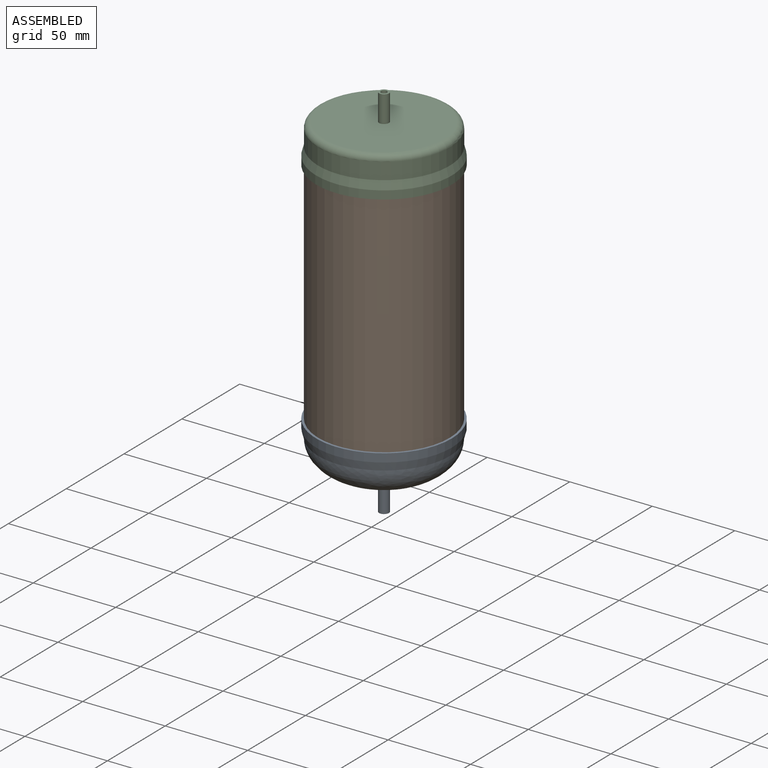
[diagram: assembled view]
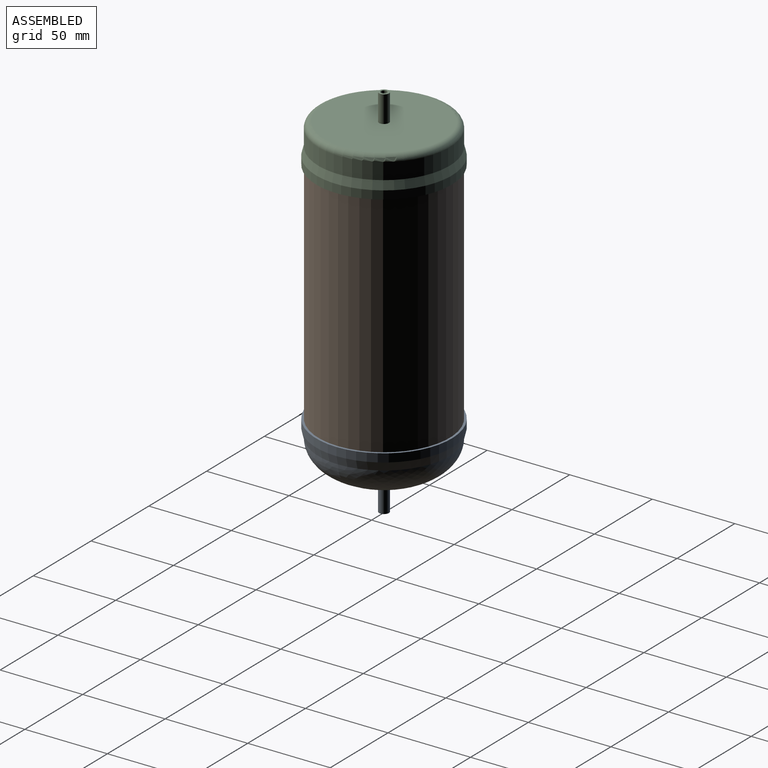
[diagram: assembled view, second angle]
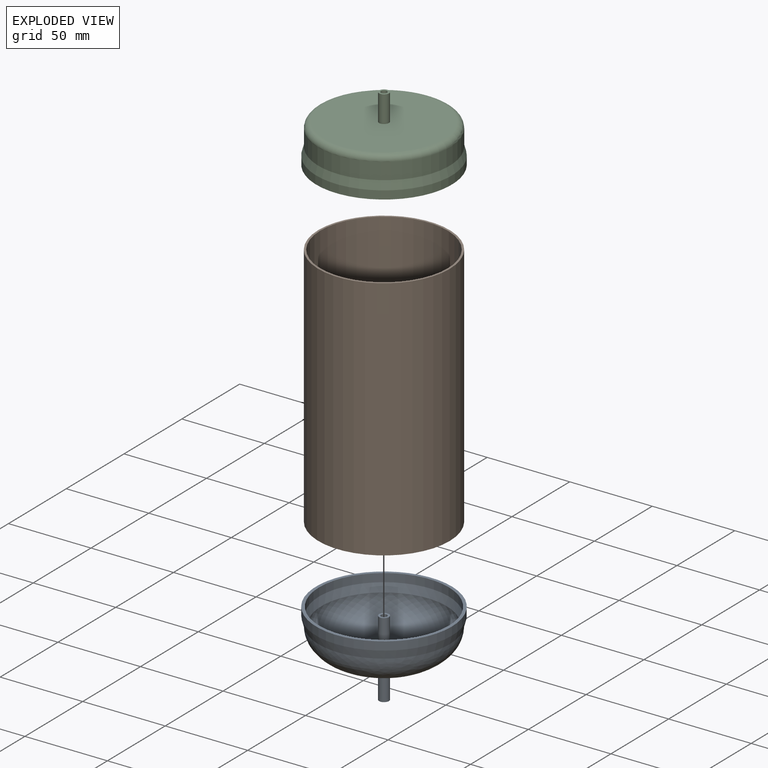
[diagram: exploded view]
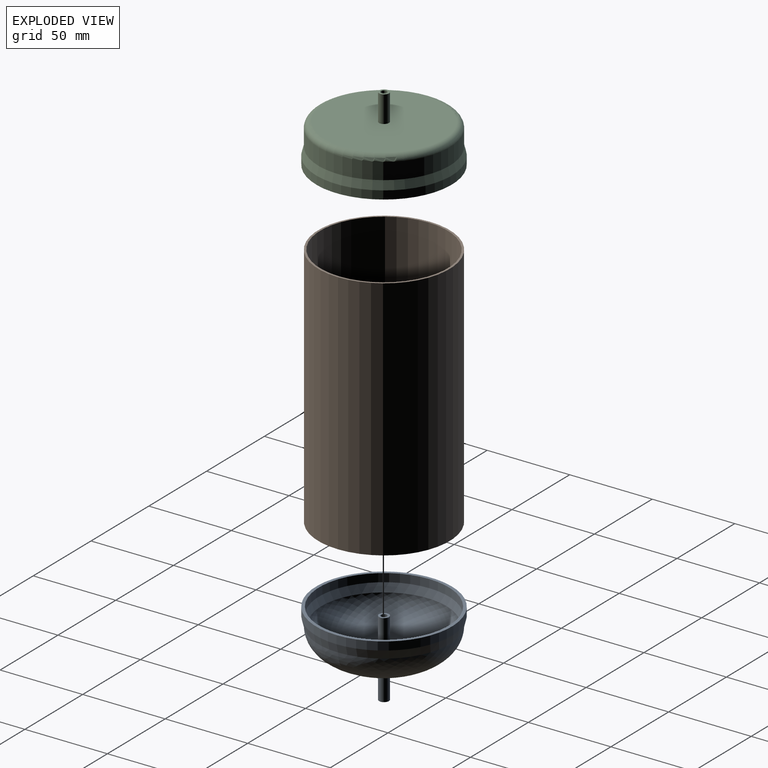
[diagram: exploded view, second angle]
ASSEMBLY  parts=3 mates=2
PART A: 15 faces, bbox 82.2x82.2x51 mm
  f0: cylinder r=39.3mm len=78.6mm, axis (0,0,1), area 1234.6mm2, adj f1,f6
  f1: plane 82.2x82.2mm, normal (0,0,1), area 454.7mm2, adj f0,f2
  f2: cylinder r=41.1mm len=82.2mm, axis (0,0,1), area 1291.2mm2, adj f1,f3
  f3: cone r=41.1mm half-angle=14.6deg, axis (0,0,1), area 1313mm2, adj f2,f4
  f4: revolved ~79.6x79.6mm, area 7275.1mm2, adj f3,f12
  f5: revolved ~76x76mm, area 6615.3mm2, adj f6,f9
  f6: cone r=38mm half-angle=14.6deg, axis (0,0,1), area 1254.6mm2, adj f0,f5
  f7: cylinder r=1.8mm len=24.99mm, axis (0,0,1), area 282.6mm2, adj f8,f10
  f8: plane 6x6mm, normal (0,0,1), area 18.1mm2, adj f7,f9
  f9: cylinder r=3mm len=24.96mm, axis (0,0,1), area 470.4mm2, adj f5,f8
  f10: revolved ~3.6x3.6mm, area 10.2mm2, adj f7
  f11: cylinder r=1.8mm len=19.22mm, axis (0,0,1), area 217.4mm2, adj f13,f14
  f12: cylinder r=3mm len=19.25mm, axis (0,0,1), area 362.9mm2, adj f4,f13
  f13: plane 6x6mm, normal (0,0,-1), area 18.1mm2, adj f11,f12
  f14: revolved ~3.6x3.6mm, area 10.2mm2, adj f11
PART B: 4 faces, bbox 79.6x79.6x149 mm
  f0: cylinder r=38.6mm len=149mm, axis (0,0,-1), area 36137.1mm2, adj f2,f3
  f1: cylinder r=39.8mm len=149mm, axis (0,0,-1), area 37260.5mm2, adj f2,f3
  f2: plane 79.6x79.6mm, normal (0,0,1), area 295.6mm2, adj f0,f1
  f3: plane 79.6x79.6mm, normal (0,0,-1), area 295.6mm2, adj f0,f1
PART C: 15 faces, bbox 86.2x86.2x39.8 mm
  f0: plane 82.2x82.2mm, normal (0,0,1), area 454.7mm2, adj f1,f10
  f1: cylinder r=41.1mm len=82.2mm, axis (0,0,1), area 1291.2mm2, adj f0,f2
  f2: cone r=41.1mm half-angle=14.6deg, axis (0,0,1), area 1313mm2, adj f1,f3
  f3: cylinder r=39.8mm len=79.6mm, axis (0,0,1), area 2500.7mm2, adj f2,f4
  f4: torus R=36.2mm, axis (0,0,1), area 1367.6mm2, adj f3,f5
  f5: plane 72.4x72.4mm, normal (0,0,-1), area 4088.6mm2, adj f4,f12
  f6: plane 72.4x72.4mm, normal (0,0,1), area 4116.9mm2, adj f7
  f7: torus R=36.2mm, axis (0,0,1), area 663.5mm2, adj f6,f8
  f8: cylinder r=38mm len=76mm, axis (0,0,1), area 2387.6mm2, adj f7,f9
  f9: cone r=39.3mm half-angle=14.6deg, axis (0,0,1), area 1254.6mm2, adj f8,f10
  f10: cylinder r=39.3mm len=78.6mm, axis (0,0,1), area 1234.6mm2, adj f0,f9
  f11: cylinder r=1.8mm len=16.2mm, axis (0,0,1), area 183.2mm2, adj f13,f14
  f12: cylinder r=3mm len=16.2mm, axis (0,0,1), area 305.4mm2, adj f5,f13
  f13: plane 6x6mm, normal (0,0,-1), area 18.1mm2, adj f11,f12
  f14: plane 3.6x3.6mm, normal (0,0,-1), area 10.2mm2, adj f11
PLACE A t=(-73.99,80.78,-71.14)mm
PLACE B t=(-73.99,80.78,3.36)mm
PLACE C rot(axis=(0,1,0),180deg) t=(-73.99,80.78,77.86)mm
MATE fastened B.f1 <-> A.f0  axis (0,0,-1) through (-73.99,80.78,-71.14)mm
MATE fastened B.f0 <-> C.f1  axis (0,0,1) through (-73.99,80.78,77.86)mm
